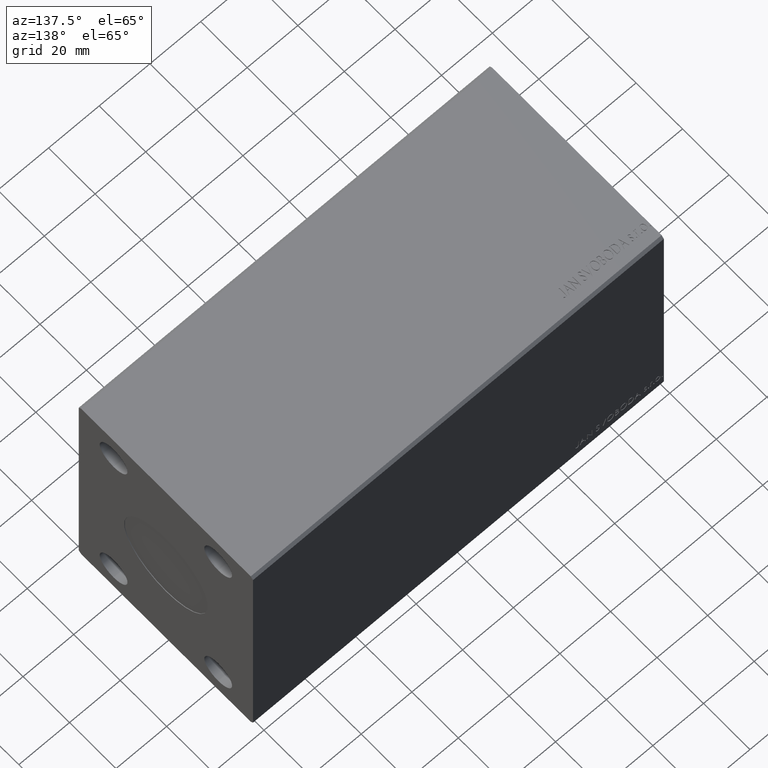
[diagram: clean part render]
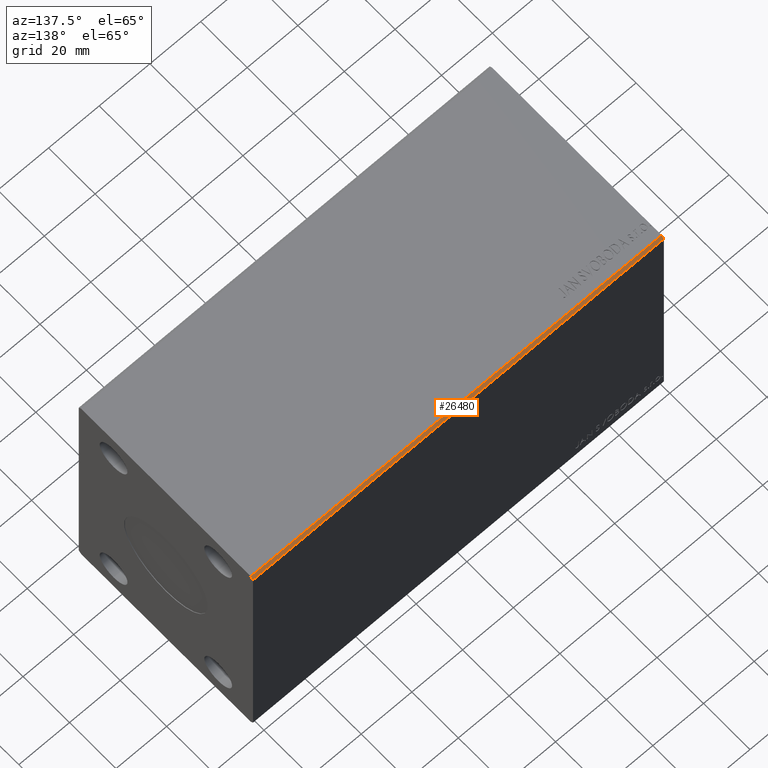
[diagram: same view with one face highlighted and labeled with its STEP entity id]
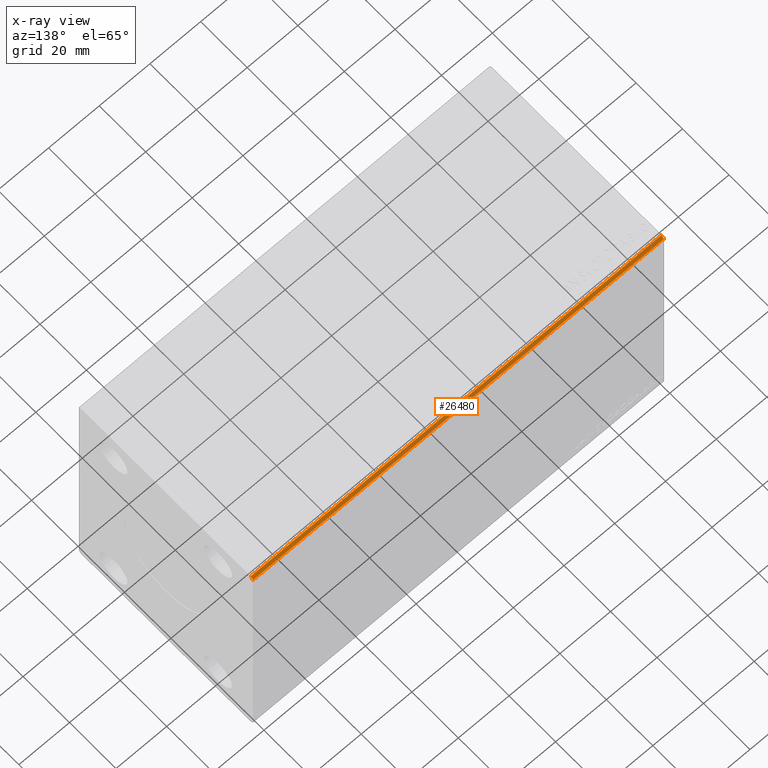
[diagram: x-ray of the same camera — body ghosted, the highlighted face saturated]
A machine part, auxiliary view. The second image highlights one B-rep face of the part: STEP entity #26480.
The next image is the same camera in x-ray: the body ghosted, the highlighted face saturated — about 0% of this face is hidden behind the body in this view.
In plain terms, the highlighted planar face has unit normal (0, -0.7071, -0.7071).
Its self-contained STEP definition (entity closure, byte-faithful):
#1284 = DIRECTION ( 'NONE',  ( 0.000000000000000000, 0.7071067811865474617, -0.7071067811865474617 ) ) ;
#2296 = CARTESIAN_POINT ( 'NONE',  ( 0.000000000000000000, 37.50000000000000711, 49.00000000000000000 ) ) ;
#4796 = EDGE_CURVE ( 'NONE', #38797, #32811, #21079, .T. ) ;
#5355 = AXIS2_PLACEMENT_3D ( 'NONE', #17948, #28194, #1284 ) ;
#8048 = CARTESIAN_POINT ( 'NONE',  ( 162.0000000000000000, 36.50000000000000711, 50.00000000000000000 ) ) ;
#8111 = CARTESIAN_POINT ( 'NONE',  ( 0.000000000000000000, 36.50000000000000711, 50.00000000000000000 ) ) ;
#9572 = EDGE_LOOP ( 'NONE', ( #12776, #13657, #17313, #36188 ) ) ;
#11177 = LINE ( 'NONE', #8048, #21644 ) ;
#11396 = DIRECTION ( 'NONE',  ( -1.000000000000000000, -0.000000000000000000, -0.000000000000000000 ) ) ;
#12776 = ORIENTED_EDGE ( 'NONE', *, *, #4796, .T. ) ;
#13171 = DIRECTION ( 'NONE',  ( 0.000000000000000000, -0.7071067811865474617, 0.7071067811865474617 ) ) ;
#13657 = ORIENTED_EDGE ( 'NONE', *, *, #25172, .F. ) ;
#14402 = CARTESIAN_POINT ( 'NONE',  ( 0.000000000000000000, 37.50000000000000711, 49.00000000000000000 ) ) ;
#17313 = ORIENTED_EDGE ( 'NONE', *, *, #37092, .F. ) ;
#17948 = CARTESIAN_POINT ( 'NONE',  ( 162.0000000000000000, 37.50000000000000711, 49.00000000000000000 ) ) ;
#18169 = PLANE ( 'NONE',  #5355 ) ;
#19623 = LINE ( 'NONE', #40746, #41592 ) ;
#21078 = FACE_OUTER_BOUND ( 'NONE', #9572, .T. ) ;
#21079 = LINE ( 'NONE', #14402, #26723 ) ;
#21644 = VECTOR ( 'NONE', #11396, 1000.000000000000000 ) ;
#21684 = CARTESIAN_POINT ( 'NONE',  ( 162.0000000000000000, 37.50000000000000711, 49.00000000000000000 ) ) ;
#25172 = EDGE_CURVE ( 'NONE', #38306, #32811, #11177, .T. ) ;
#26480 = ADVANCED_FACE ( 'NONE', ( #21078 ), #18169, .F. ) ;
#26723 = VECTOR ( 'NONE', #34216, 1000.000000000000114 ) ;
#28137 = DIRECTION ( 'NONE',  ( -1.000000000000000000, -0.000000000000000000, -0.000000000000000000 ) ) ;
#28194 = DIRECTION ( 'NONE',  ( 0.000000000000000000, -0.7071067811865475727, -0.7071067811865475727 ) ) ;
#32131 = LINE ( 'NONE', #21684, #43140 ) ;
#32811 = VERTEX_POINT ( 'NONE', #8111 ) ;
#34216 = DIRECTION ( 'NONE',  ( 0.000000000000000000, -0.7071067811865474617, 0.7071067811865474617 ) ) ;
#36188 = ORIENTED_EDGE ( 'NONE', *, *, #37370, .T. ) ;
#36995 = VERTEX_POINT ( 'NONE', #42558 ) ;
#37091 = CARTESIAN_POINT ( 'NONE',  ( 162.0000000000000000, 36.50000000000000711, 50.00000000000000000 ) ) ;
#37092 = EDGE_CURVE ( 'NONE', #36995, #38306, #19623, .T. ) ;
#37370 = EDGE_CURVE ( 'NONE', #36995, #38797, #32131, .T. ) ;
#38306 = VERTEX_POINT ( 'NONE', #37091 ) ;
#38797 = VERTEX_POINT ( 'NONE', #2296 ) ;
#40746 = CARTESIAN_POINT ( 'NONE',  ( 162.0000000000000000, 37.50000000000000711, 49.00000000000000000 ) ) ;
#41592 = VECTOR ( 'NONE', #13171, 1000.000000000000114 ) ;
#42558 = CARTESIAN_POINT ( 'NONE',  ( 162.0000000000000000, 37.50000000000000711, 49.00000000000000000 ) ) ;
#43140 = VECTOR ( 'NONE', #28137, 1000.000000000000000 ) ;